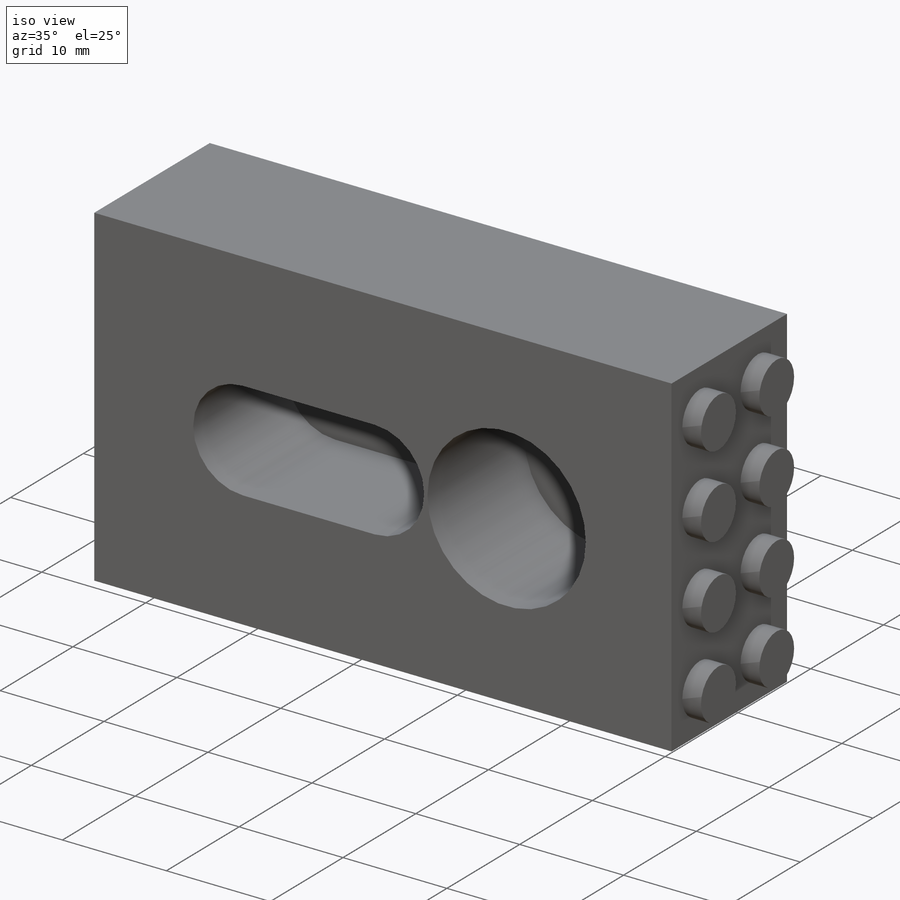
[diagram: iso view]
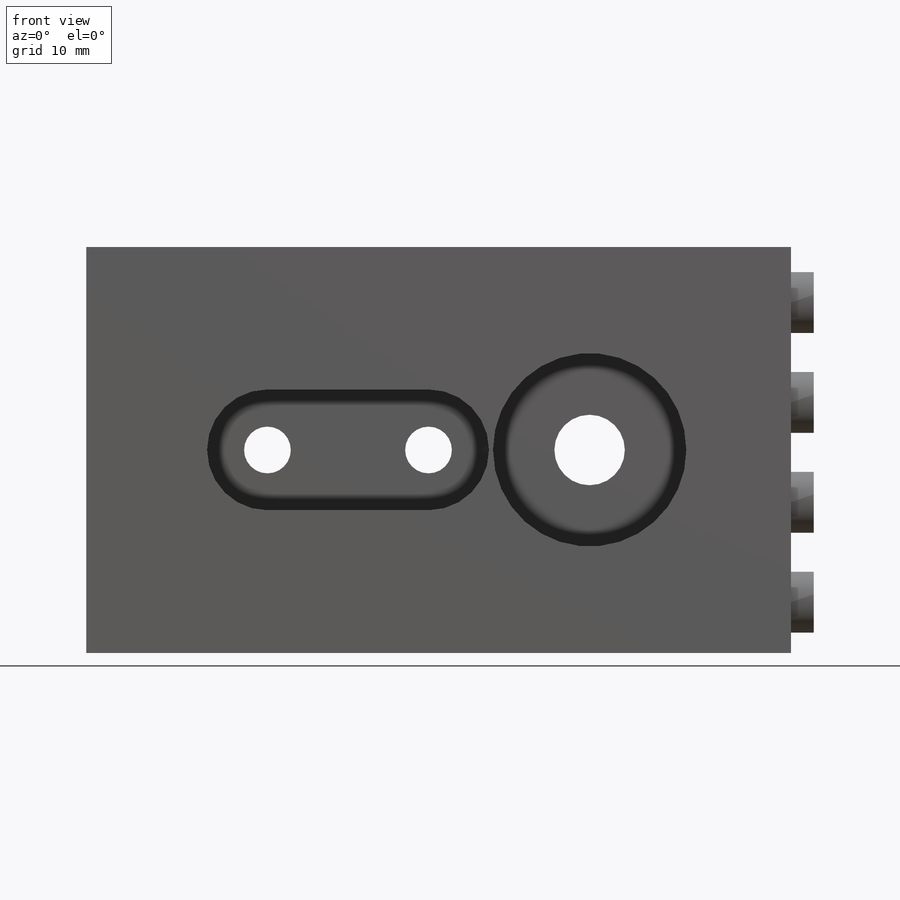
[diagram: front view]
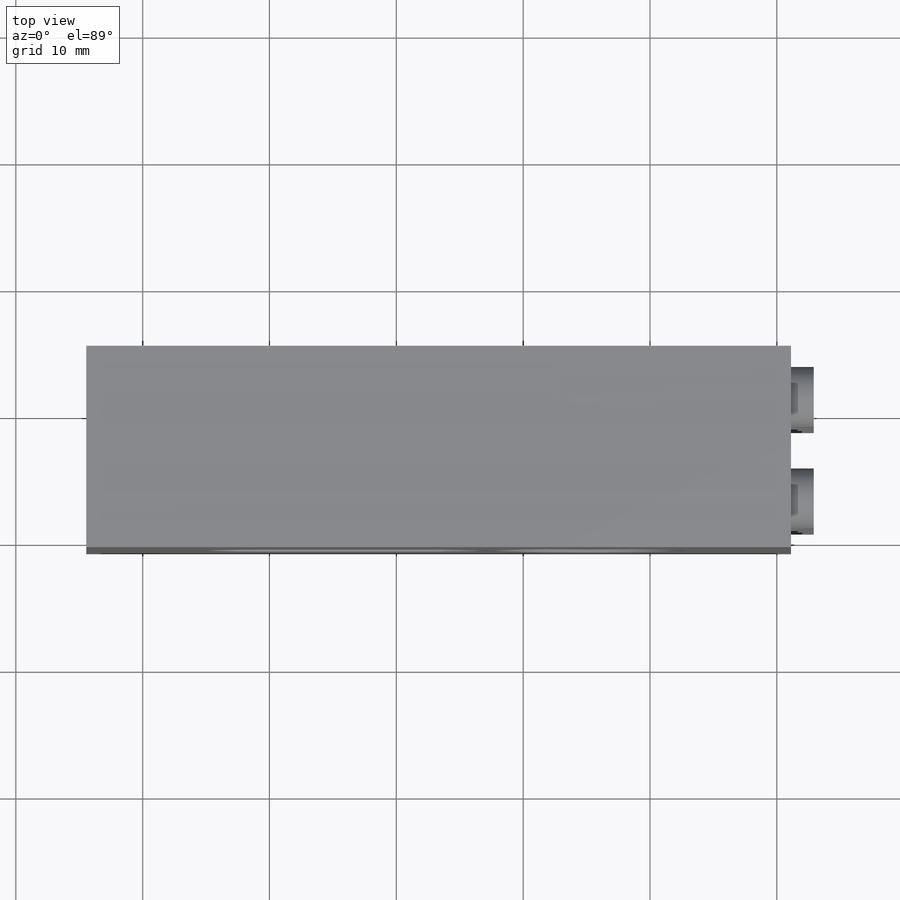
[diagram: top view]
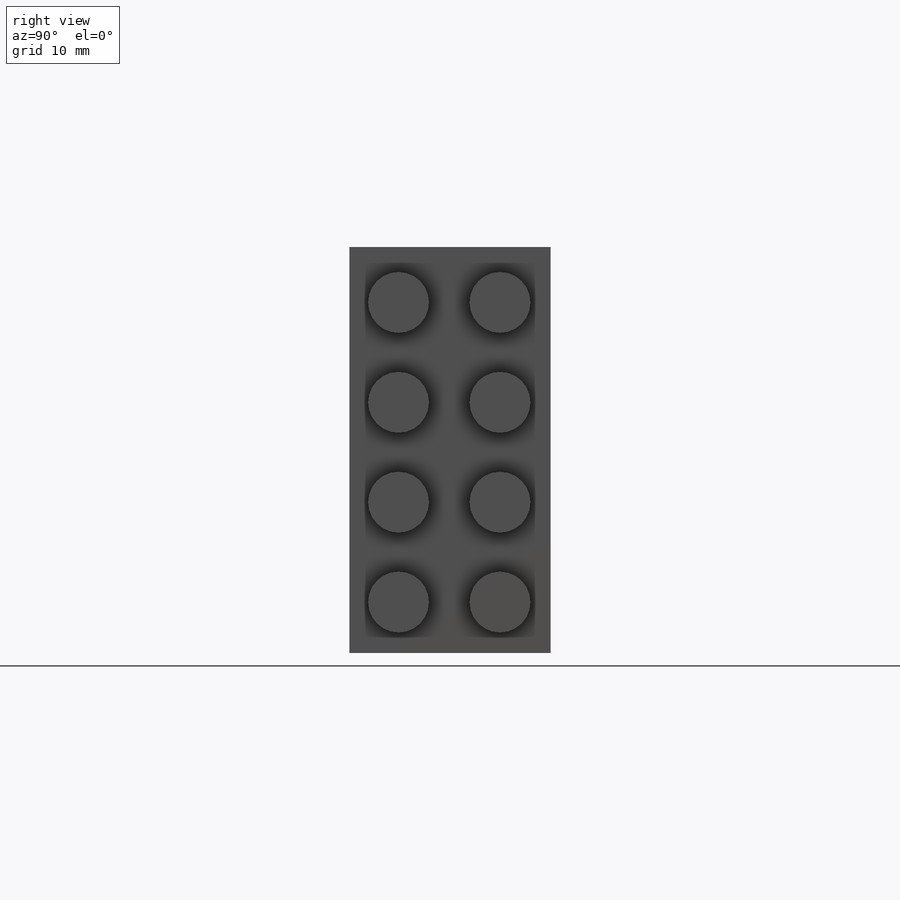
[diagram: right view]
SOLIDWORKS PART (.sldprt)
format: sldprt  version: not decoded by parser v0  size: 449,536 bytes
history: native  units: mm
features: sketch x11, cut_extrude x8, extrude x3, material x1 (+11 scaffold rows collapsed)
feature tree (34):
  scaffold x11  (default folders/planes/origin — collapsed)
  material  "Custom Plastic"
  sketch  "Sketch1"  dims[D1=55.5625mm D2=31.75mm]
  extrude  "Boss-Extrude1"  Depth=28.575mm
  sketch  "Sketch2"  dims[c1.D3=15.24mm c1.D1=16.0mm c1.D2=15.875mm c2.D1=16.0mm]
  cut_extrude  "Cut-Extrude1"  Depth=13.335mm
  sketch  "Sketch3"  dims[c1.D4=4.7625mm c1.D5=15.24mm c1.D2=12.7mm c1.D3=12.7mm c2.D5=16.0mm c2.D1=0.0mm]
  cut_extrude  "Cut-Extrude2"  Depth=12.7mm
  sketch  "Sketch4"  dims[D2=3.683mm D3=3.683mm D1=0.0mm]
  cut_extrude  "Cut-Extrude3"  Depth=25.4mm
  sketch  "Sketch5"  dims[D1=0.0mm D2=0.0mm]
  cut_extrude  "Cut-Extrude4"  Depth=17.78mm
  sketch  "Sketch6"  dims[D1=0.0mm]
  cut_extrude  "Cut-Extrude5"  Depth=15.875mm
  sketch  "Sketch7"  dims[D2=~5.55625mm D1=0.0mm]
  cut_extrude  "Cut-Extrude7"  Depth=7.9375mm
  sketch  "Sketch8"  dims[c1.D1=4.8mm c1.D2=4.8mm c2.D1=4.8mm c2.D4=4.8mm c2.D3=4.0mm c3.D4=~5.80988mm c3.D3=12.0mm c4.D4=4.0mm c4.D5=~5.80988mm c5.D4=8.0mm c5.D5=3.875mm c5.D2=4.0mm c5.D3=8.0mm c6.D4=8.0mm c6.D6=4.0mm c6.D5=4.0]
  extrude  "Boss-Extrude2"  Depth=1.8mm
  sketch  "Sketch10"  dims[D1=0.0mm]
  extrude  "Boss-Extrude3"  Depth=4mm
  sketch  "Sketch11"  dims[D2=32.575mm D3=32.0mm D1=0.0mm]
  cut_extrude  "Cut-Extrude8"  [1 undecoded]
  sketch  "Sketch12"  dims[c1.D6=6.51mm c1.D7=4.9mm c1.D1=1.2mm c1.D2=1.2mm c1.D3=1.2mm c1.D4=1.2mm c1.D5=8.0mm c1.D9=8.0mm c1.D10=0.6mm c1.D11=0.6mm c1.D12=0.3mm c1.D13=0.3mm c1.D14=4.0mm c1.D15=0.6mm c1.D16=0.6mm c1.D17=0.3mm c1.D18=0.3mm c1.D19=4.0mm c1.D20=4.0mm c2.D19=8.0mm c2.D8=3.0 c2.D14=4.0]
  cut_extrude  "Cut-Extrude10"  Depth=2.1mm
decode coverage: 21 of 22 modeling features carry decoded parameters
note: ~ marks probable driven/reference dimensions
note: 1 parameter value undecoded
note: suppression state not decoded; provenance and decode notes live in map.json
